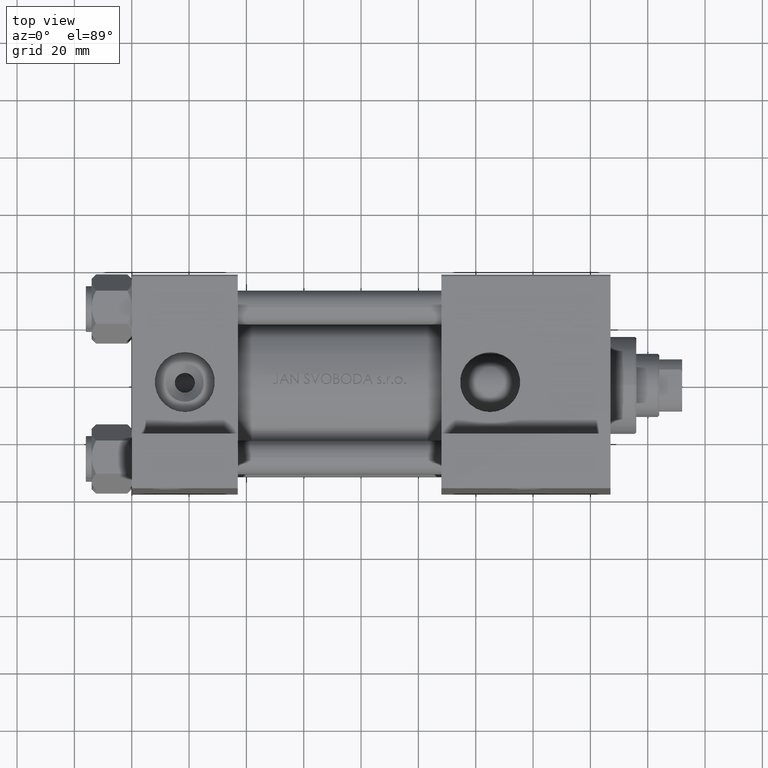
[diagram: clean part render]
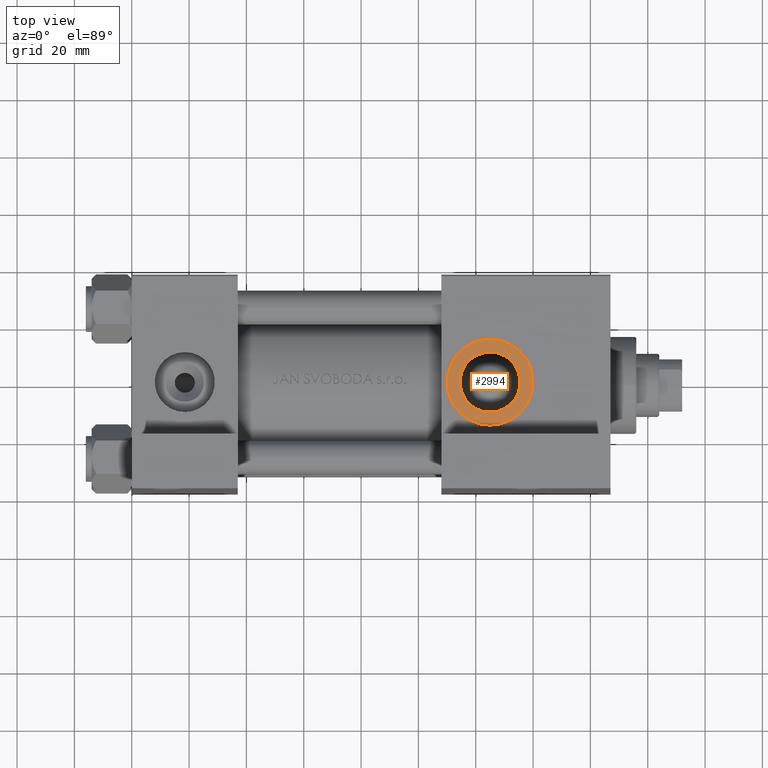
[diagram: same view with one face highlighted and labeled with its STEP entity id]
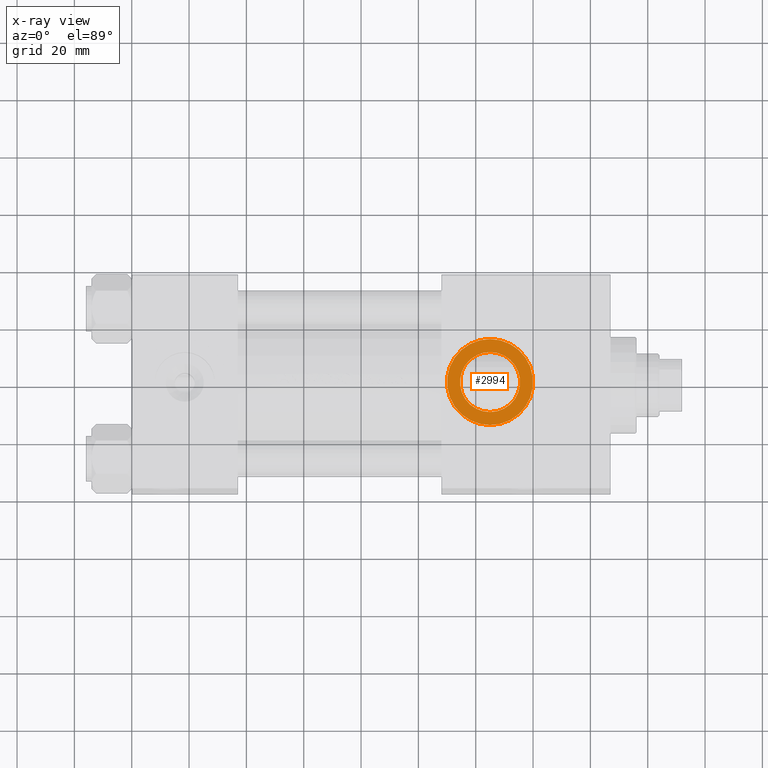
[diagram: x-ray of the same camera — body ghosted, the highlighted face saturated]
A machine part, top view. The second image highlights one B-rep face of the part: STEP entity #2994.
The next image is the same camera in x-ray: the body ghosted, the highlighted face saturated — about 0% of this face is hidden behind the body in this view.
In plain terms, the highlighted planar face has unit normal (0, -0, 1).
Its self-contained STEP definition (entity closure, byte-faithful):
#1613 = DIRECTION ( 'NONE',  ( 0.000000000000000000, 0.000000000000000000, -1.000000000000000000 ) ) ;
#1662 = DIRECTION ( 'NONE',  ( 0.000000000000000000, -1.000000000000000000, -8.673617379884036705E-17 ) ) ;
#2994 = ADVANCED_FACE ( 'NONE', ( #10039, #5334 ), #29452, .T. ) ;
#3166 = VERTEX_POINT ( 'NONE', #9500 ) ;
#5115 = DIRECTION ( 'NONE',  ( 0.000000000000000000, -1.000000000000000000, -8.673617379884036705E-17 ) ) ;
#5334 = FACE_OUTER_BOUND ( 'NONE', #38089, .T. ) ;
#9337 = CARTESIAN_POINT ( 'NONE',  ( 124.9999999999999858, -37.29999999999999716, 3.486794186713383443E-15 ) ) ;
#9340 = CARTESIAN_POINT ( 'NONE',  ( 124.9999999999999858, -37.29999999999999716, 3.486794186713383443E-15 ) ) ;
#9500 = CARTESIAN_POINT ( 'NONE',  ( 124.9999999999999858, -37.29999999999999716, -10.47999999999999687 ) ) ;
#10039 = FACE_BOUND ( 'NONE', #21046, .T. ) ;
#10514 = DIRECTION ( 'NONE',  ( 0.000000000000000000, 8.673617379884036705E-17, -1.000000000000000000 ) ) ;
#12401 = ORIENTED_EDGE ( 'NONE', *, *, #25137, .T. ) ;
#13333 = AXIS2_PLACEMENT_3D ( 'NONE', #9340, #42709, #1613 ) ;
#13689 = EDGE_CURVE ( 'NONE', #41884, #3166, #24478, .T. ) ;
#14220 = EDGE_CURVE ( 'NONE', #31577, #30361, #33231, .T. ) ;
#14996 = CARTESIAN_POINT ( 'NONE',  ( 124.9999999999999858, -37.29999999999999716, 3.486794186713383443E-15 ) ) ;
#16112 = CIRCLE ( 'NONE', #36784, 15.00000000000001243 ) ;
#16620 = DIRECTION ( 'NONE',  ( 0.000000000000000000, -1.000000000000000000, -8.673617379884036705E-17 ) ) ;
#18396 = CARTESIAN_POINT ( 'NONE',  ( 124.9999999999999858, -37.29999999999999716, 15.00000000000001421 ) ) ;
#18910 = AXIS2_PLACEMENT_3D ( 'NONE', #43737, #1662, #24836 ) ;
#20619 = CARTESIAN_POINT ( 'NONE',  ( 124.9999999999999858, -37.29999999999999716, 10.48000000000000398 ) ) ;
#21046 = EDGE_LOOP ( 'NONE', ( #25212, #46785 ) ) ;
#21727 = DIRECTION ( 'NONE',  ( 0.000000000000000000, -1.000000000000000000, -8.673617379884036705E-17 ) ) ;
#22356 = ORIENTED_EDGE ( 'NONE', *, *, #14220, .T. ) ;
#24024 = EDGE_CURVE ( 'NONE', #3166, #41884, #34351, .T. ) ;
#24478 = CIRCLE ( 'NONE', #13333, 10.48000000000000043 ) ;
#24836 = DIRECTION ( 'NONE',  ( 0.000000000000000000, 0.000000000000000000, -1.000000000000000000 ) ) ;
#25137 = EDGE_CURVE ( 'NONE', #30361, #31577, #16112, .T. ) ;
#25212 = ORIENTED_EDGE ( 'NONE', *, *, #24024, .F. ) ;
#25864 = AXIS2_PLACEMENT_3D ( 'NONE', #14996, #21727, #10514 ) ;
#29168 = CARTESIAN_POINT ( 'NONE',  ( 124.9999999999999858, -37.29999999999999716, -15.00000000000000888 ) ) ;
#29452 = PLANE ( 'NONE',  #25864 ) ;
#30361 = VERTEX_POINT ( 'NONE', #29168 ) ;
#31557 = CARTESIAN_POINT ( 'NONE',  ( 124.9999999999999858, -37.29999999999999716, 3.486794186713383443E-15 ) ) ;
#31577 = VERTEX_POINT ( 'NONE', #18396 ) ;
#31755 = DIRECTION ( 'NONE',  ( 0.000000000000000000, 0.000000000000000000, -1.000000000000000000 ) ) ;
#33231 = CIRCLE ( 'NONE', #18910, 15.00000000000001243 ) ;
#34351 = CIRCLE ( 'NONE', #42296, 10.48000000000000043 ) ;
#35289 = DIRECTION ( 'NONE',  ( 0.000000000000000000, 0.000000000000000000, -1.000000000000000000 ) ) ;
#36784 = AXIS2_PLACEMENT_3D ( 'NONE', #9337, #5115, #31755 ) ;
#38089 = EDGE_LOOP ( 'NONE', ( #12401, #22356 ) ) ;
#41884 = VERTEX_POINT ( 'NONE', #20619 ) ;
#42296 = AXIS2_PLACEMENT_3D ( 'NONE', #31557, #16620, #35289 ) ;
#42709 = DIRECTION ( 'NONE',  ( 0.000000000000000000, -1.000000000000000000, -8.673617379884036705E-17 ) ) ;
#43737 = CARTESIAN_POINT ( 'NONE',  ( 124.9999999999999858, -37.29999999999999716, 3.486794186713383443E-15 ) ) ;
#46785 = ORIENTED_EDGE ( 'NONE', *, *, #13689, .F. ) ;